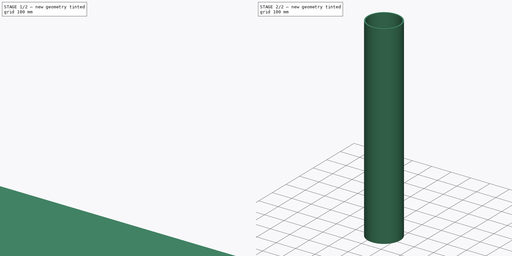
[diagram: build sequence overview — one tinted view per stage of 2, left to right]
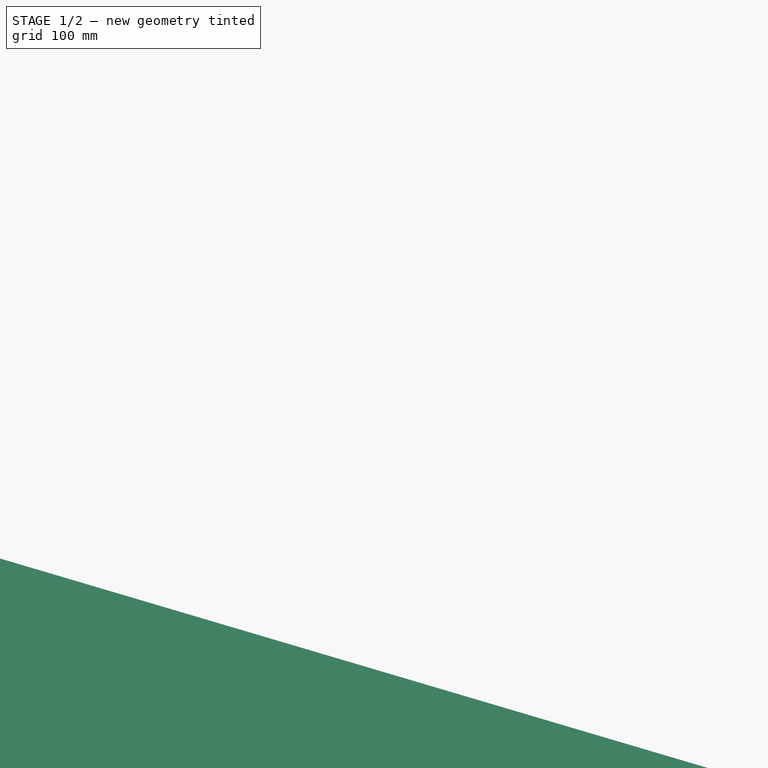
[diagram: stage 1 of 2 — iso view after this stage's code; geometry added in this stage tinted green]
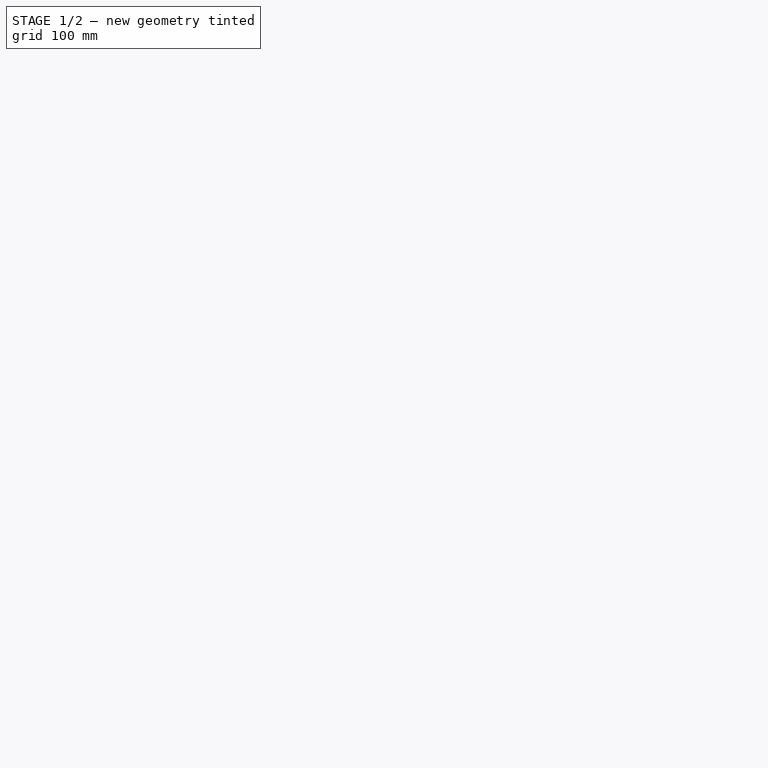
[diagram: stage 1 of 2 — front view after this stage's code; geometry added in this stage tinted green]
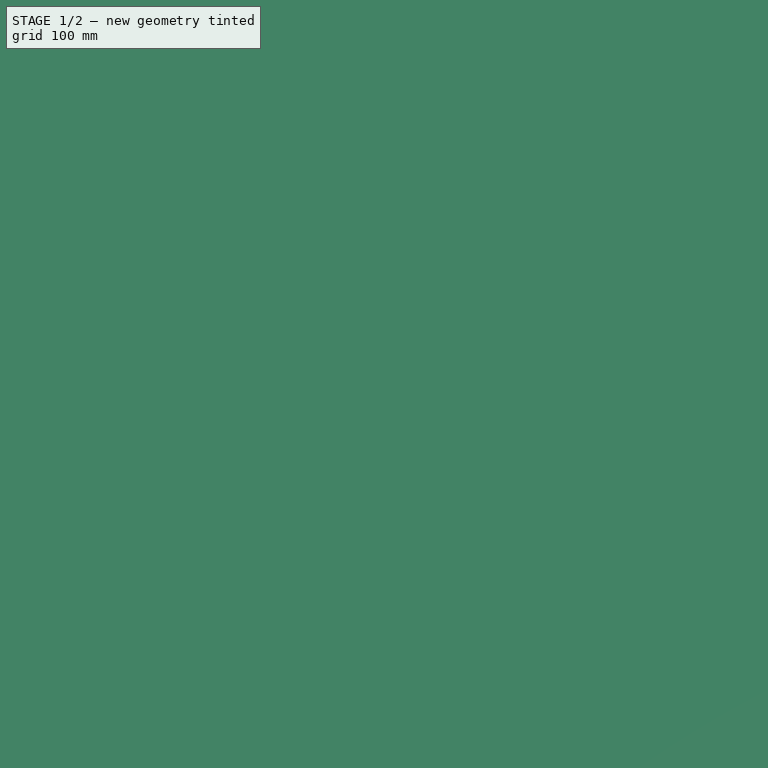
[diagram: stage 1 of 2 — top view after this stage's code; geometry added in this stage tinted green]
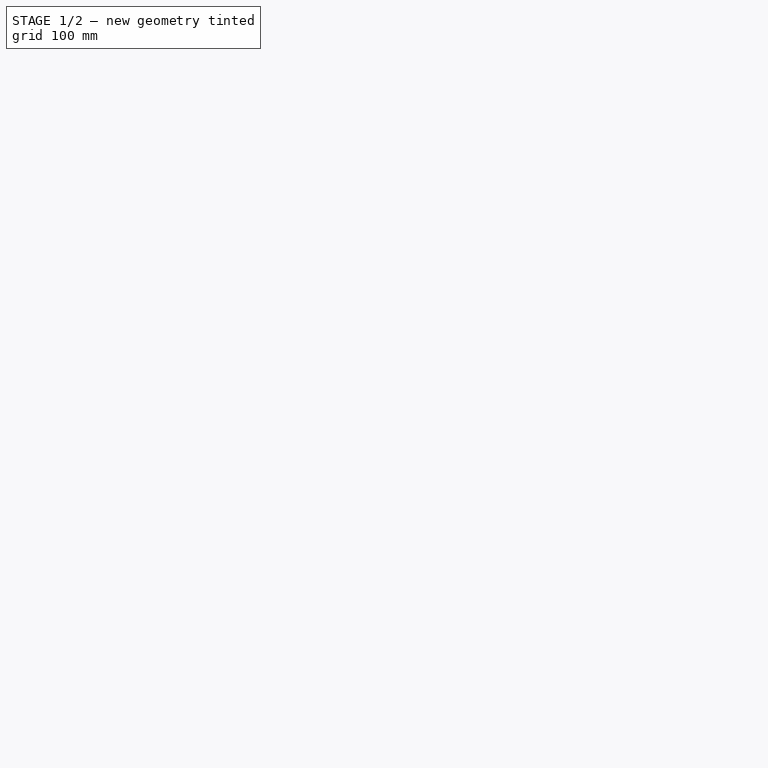
[diagram: stage 1 of 2 — right view after this stage's code; geometry added in this stage tinted green]
FCSTD DOCUMENT  (FreeCAD 0.20R29177 +426 (Git))
Label: NMS_Ruhrstr12_Silo_CAD
License: All rights reserved
LicenseURL: http://en.wikipedia.org/wiki/All_rights_reserved
objects: Sketcher::SketchObject×6, Part::FeaturePython×5, Part::Feature×4, Image::ImagePlane×3, Part::Extrusion×3, Part::Part2DObjectPython×2, Part::Revolution×1, Part::Cylinder×1, App::DocumentObjectGroup×1
note: 22 computed .brp shape members not serialized (recipe doc carries the construction recipe); baked Part::Feature solids carry a one-line shape summary decoded from their .brp

FEATURE [Image::ImagePlane] ImagePlane  label="Siloplan Bestand"
  Placement = pos=(2598,2000,7284) rot=(-1,0,0;4.71239rad)
  XSize = 20822.6
  YSize = 21481.1
  expr: XSize = 259.33 * 80.294mm
  expr: YSize = 267.53 * 80.294mm
FEATURE [Sketcher::SketchObject] Sketch
  FullyConstrained = false
  Placement = pos=(0,0,0) rot=(1,0,0;1.5708rad)
  expr: Constraints[49] = 2865 / 2
  sketch-geometry (19):
    g0: LineSegment StartX=1432.5 StartY=14210 StartZ=0 EndX=1432.5 EndY=12210 EndZ=0
    g1: LineSegment StartX=1432.5 StartY=10210 StartZ=0 EndX=1432.5 EndY=8210 EndZ=0
    g2: LineSegment StartX=1432.5 StartY=8210 StartZ=0 EndX=1432.5 EndY=6210 EndZ=0
    g3: LineSegment StartX=1432.5 StartY=6210 StartZ=0 EndX=1432.5 EndY=4210 EndZ=0
    g4: LineSegment StartX=0 StartY=-300 StartZ=0 EndX=-5700 EndY=-300 EndZ=0
    g5: LineSegment StartX=1432.5 StartY=16210 StartZ=0 EndX=1432.5 EndY=16090 EndZ=0
    g6: LineSegment StartX=1432.5 StartY=16090 StartZ=0 EndX=1432.5 EndY=14210 EndZ=0
    g7: LineSegment StartX=1432.5 StartY=12210 StartZ=0 EndX=1432.5 EndY=12090 EndZ=0
    g8: LineSegment StartX=1432.5 StartY=12090 StartZ=0 EndX=1432.5 EndY=10210 EndZ=0
    g9: LineSegment StartX=0 StartY=16210 StartZ=0 EndX=0 EndY=14210 EndZ=0
    g10: LineSegment StartX=0 StartY=14210 StartZ=0 EndX=0 EndY=12210 EndZ=0
    g11: LineSegment StartX=0 StartY=12210 StartZ=0 EndX=0 EndY=10210 EndZ=0
    g12: LineSegment StartX=0 StartY=10210 StartZ=0 EndX=0 EndY=8210 EndZ=0
    g13: LineSegment StartX=0 StartY=8210 StartZ=0 EndX=0 EndY=6210 EndZ=0
    g14: LineSegment StartX=0 StartY=6210 StartZ=0 EndX=0 EndY=4210 EndZ=0
    g15: LineSegment StartX=0 StartY=4210 StartZ=0 EndX=0 EndY=2510 EndZ=0
    g16: LineSegment StartX=1432.5 StartY=4210 StartZ=0 EndX=150 EndY=2510 EndZ=0
    g17: LineSegment StartX=150 StartY=2510 StartZ=0 EndX=0 EndY=2510 EndZ=0
    g18: LineSegment StartX=1432.5 StartY=16210 StartZ=0 EndX=377.475 EndY=16355.8 EndZ=0
  constraints (57):
    c: Coincident(g6,g0)
    c: Vertical(g0)
    c: Coincident(g0,g7)
    c: Coincident(g8,g1)
    c: Vertical(g1)
    c: Coincident(g1,g2)
    c: Vertical(g2)
    c: Coincident(g2,g3)
    c: Vertical(g3)
    c: PointOnObject(g4,g-2)
    c: Horizontal(g4)
    c: DistanceY(g4,g-1) = 300
    c: DistanceX(g4,g4) = 5700
    c: DistanceY(g4,g5) = 16510
    c: Coincident(g5,g6)
    c: Vertical(g5)
    c: Vertical(g6)
    c: DistanceY(g5,g5) = 120
    c: Coincident(g7,g8)
    c: Vertical(g7)
    c: Vertical(g8)
    c: Equal(g7,g5)
    c: PointOnObject(g9,g-2)
    c: Vertical(g9)
    c: Coincident(g9,g10)
    c: PointOnObject(g10,g-2)
    c: Coincident(g10,g11)
    c: Vertical(g11)
    c: Coincident(g11,g12)
    c: Vertical(g12)
    c: Coincident(g12,g13)
    c: Vertical(g13)
    c: Coincident(g13,g14)
    c: PointOnObject(g14,g-2)
    c: Coincident(g14,g15)
    c: PointOnObject(g15,g-2)
    c: Equal(g14,g13)
    c: Equal(g13,g12)
    c: Equal(g12,g11)
    c: Equal(g11,g10)
    c: Equal(g10,g9)
    c: DistanceY(g9,g9) = 2000
    c: Horizontal(g9,g5)
    c: Horizontal(g9,g0)
    c: Horizontal(g10,g0)
    c: Horizontal(g11,g1)
    c: Horizontal(g12,g1)
    c: Horizontal(g13,g2)
    c: Horizontal(g14,g3)
    c: DistanceX(g14,g3) = 1432.5
    c: Coincident(g3,g16)
    c: Coincident(g16,g17)
    c: Coincident(g17,g15)
    c: Horizontal(g17)
    c: DistanceY(g15,g15) = 1700
    c: DistanceX(g17,g17) = 150
    c: Coincident(g18,g5)
FEATURE [Part::Revolution] Revolve  label="Silo"
  Angle = 360
  Axis = (0,0,1)
  Base = (0,0,0)
  FaceMakerClass = Part::FaceMakerBullseye
  Solid = false
  Source = -> Sketch
  Symmetric = false
FEATURE [Part::Part2DObjectPython] Circle  # Draft 2D object (typed FeaturePython)
  Area = 6.44672e+06
  FirstAngle = 0
  LastAngle = 0
  MakeFace = true
  Placement = pos=(0,0,4210) rot=(0,0,1;0rad)
  Radius = 1432.5
FEATURE [Sketcher::SketchObject] Sketch001
  ExternalGeometry = -> [Circle]
  FullyConstrained = true
  MapMode = 5
  Placement = pos=(0,0,4210) rot=(0,0,1;0rad)
  Support = -> [Circle]
  sketch-geometry (6):
    g0: LineSegment StartX=0 StartY=0 StartZ=0 EndX=1012.93 EndY=1012.93 EndZ=0
    g1: LineSegment StartX=0 StartY=0 StartZ=0 EndX=1012.93 EndY=0 EndZ=0
    g2: LineSegment StartX=1012.93 StartY=1012.93 StartZ=0 EndX=1012.93 EndY=0 EndZ=0
    g3: LineSegment StartX=947.29 StartY=1074.57 StartZ=0 EndX=996.787 EndY=1124.07 EndZ=0
    g4: LineSegment StartX=996.787 StartY=1124.07 StartZ=0 EndX=1124.07 EndY=996.787 EndZ=0
    g5: LineSegment StartX=1124.07 StartY=996.787 StartZ=0 EndX=1074.57 EndY=947.29 EndZ=0
  constraints (17):
    c: Coincident(g0,g-1)
    c: Coincident(g1,g0)
    c: PointOnObject(g1,g-1)
    c: Coincident(g2,g0)
    c: Coincident(g2,g1)
    c: Vertical(g2)
    c: Equal(g1,g2)
    c: PointOnObject(g0,g-3)
    c: PointOnObject(g3,g-3)
    c: Coincident(g3,g4)
    c: Coincident(g4,g5)
    c: Symmetric(g5,g3,g0)
    c: Parallel(g5,g3)
    c: Parallel(g3,g0)
    c: Equal(g5,g3)
    c: Distance(g4) = 180
    c: Distance(g5) = 70
FEATURE [Part::Extrusion] Extrude
  Base = -> Sketch001
  Dir = (0,0,1)
  DirMode = 2
  FaceMakerClass = Part::FaceMakerBullseye
  LengthFwd = 2000
  LengthRev = 110
  Solid = false
  Symmetric = false
FEATURE [Part::FeaturePython] Array  label="U180"  # Draft array (typed FeaturePython)
  Angle = 360
  ArrayType = 1
  Axis = (0,0,1)
  Base = -> Extrude
  Center = (0,0,0)
  Fuse = false
  IntervalAxis = (0,0,0)
  IntervalX = (50,0,0)
  IntervalY = (0,50,0)
  IntervalZ = (0,0,50)
  NumberCircles = 3
  NumberPolar = 4
  NumberX = 2
  NumberY = 2
  NumberZ = 1
  RadialDistance = 50
  Symmetry = 1
  TangentialDistance = 25
FEATURE [Part::Cylinder] Cylinder  label="Silostütze"
  Angle = 360
  AttacherType = Attacher::AttachEngine3D
  FirstAngle = 0
  Height = 4100
  Placement = pos=(1035.68,-1035.68,2.728e-12) rot=(0,0,1;0rad)
  Radius = 110
  SecondAngle = 0
FEATURE [Part::FeaturePython] Facebinder  # WARN: FeaturePython — macro-defined, semantics opaque (R4)
  Area = 2.87173e+06
  Extrusion = 0
  Faces = -> [Cylinder]
  RemoveSplitter = false
  Sew = false
FEATURE [Part::FeaturePython] Array001  label="Stuetzen"  # Draft array (typed FeaturePython)
  Angle = 360
  ArrayType = 1
  Axis = (0,0,1)
  Base = -> Facebinder
  Center = (0,0,0)
  Fuse = false
  IntervalAxis = (0,0,0)
  IntervalX = (50,0,0)
  IntervalY = (0,50,0)
  IntervalZ = (0,0,50)
  NumberCircles = 3
  NumberPolar = 4
  NumberX = 2
  NumberY = 2
  NumberZ = 1
  RadialDistance = 50
  Symmetry = 1
  TangentialDistance = 25
FEATURE [Part::FeaturePython] BooleanFragments  label="Silo2"  # WARN: FeaturePython — macro-defined, semantics opaque (R4)
  Mode = 0
  Objects = -> [Array001,Array,Revolve]
  Tolerance = 0
FEATURE [Part::Feature] BooleanFragments001  label="Silo3"
  Placement = pos=(3500,0,0) rot=(0,0,1;0rad)
  shape: bbox 2865 x 2865 x 16360 mm, 39 faces, 0 solids (baked)
FEATURE [Part::Feature] BooleanFragments002  label="Silo1"
  Placement = pos=(-3500,0,0) rot=(0,0,1;0rad)
  shape: bbox 2865 x 2865 x 16360 mm, 39 faces, 0 solids (baked)
FEATURE [Part::Feature] BooleanFragments003  label="Silo4"
  Placement = pos=(7000,0,0) rot=(0,0,1;0rad)
  shape: bbox 2865 x 2865 x 16360 mm, 39 faces, 0 solids (baked)
FEATURE [Part::Feature] BooleanFragments004  label="Silo5"
  Placement = pos=(10500,0,0) rot=(0,0,1;0rad)
  shape: bbox 2865 x 2865 x 16360 mm, 39 faces, 0 solids (baked)
FEATURE [Sketcher::SketchObject] Sketch002
  FullyConstrained = true
  Placement = pos=(0,0,0) rot=(1,0,0;1.5708rad)
  sketch-geometry (4):
    g0: LineSegment StartX=-5500 StartY=0 StartZ=0 EndX=12500 EndY=0 EndZ=0
    g1: LineSegment StartX=12500 StartY=0 StartZ=0 EndX=12500 EndY=-1300 EndZ=0
    g2: LineSegment StartX=12500 StartY=-1300 StartZ=0 EndX=-5500 EndY=-1300 EndZ=0
    g3: LineSegment StartX=-5500 StartY=-1300 StartZ=0 EndX=-5500 EndY=0 EndZ=0
  constraints (12):
    c: Coincident(g0,g1)
    c: Coincident(g1,g2)
    c: Coincident(g2,g3)
    c: Coincident(g3,g0)
    c: Horizontal(g0)
    c: Horizontal(g2)
    c: Vertical(g1)
    c: Vertical(g3)
    c: PointOnObject(g-1,g0)
    c: DistanceY(g3,g3) = 1300
    c: DistanceX(g2,g2) = 18000
    c: DistanceX(g0,g-1) = 5500
FEATURE [Part::Extrusion] Extrude001  label="Fundament Silo"
  Base = -> Sketch002
  Dir = (0,-1,-3e-16)
  DirMode = 2
  FaceMakerClass = Part::FaceMakerBullseye
  LengthFwd = 3300
  LengthRev = 0
  Solid = true
  Symmetric = true
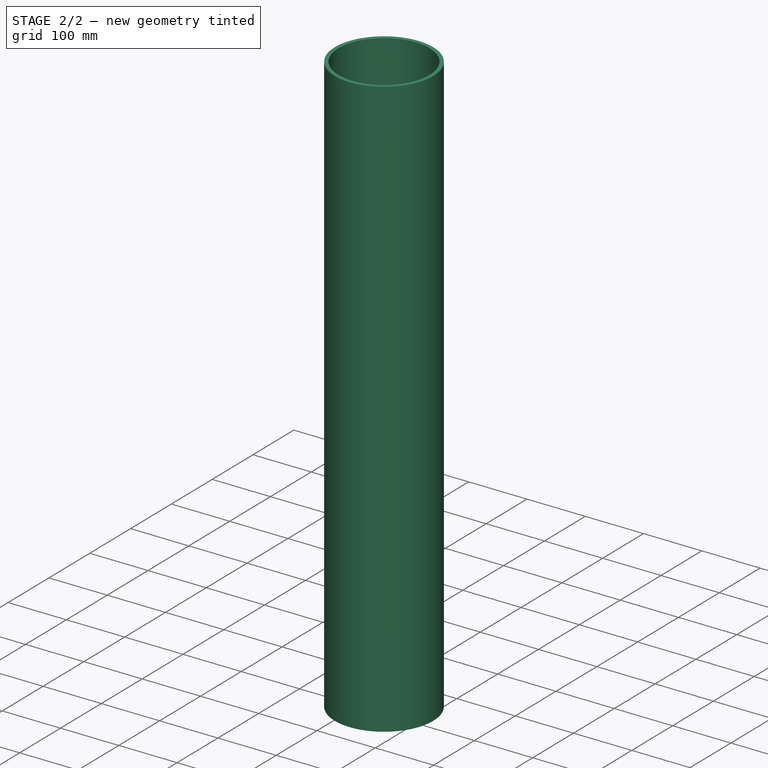
[diagram: stage 2 of 2 — iso view after this stage's code; geometry added in this stage tinted green]
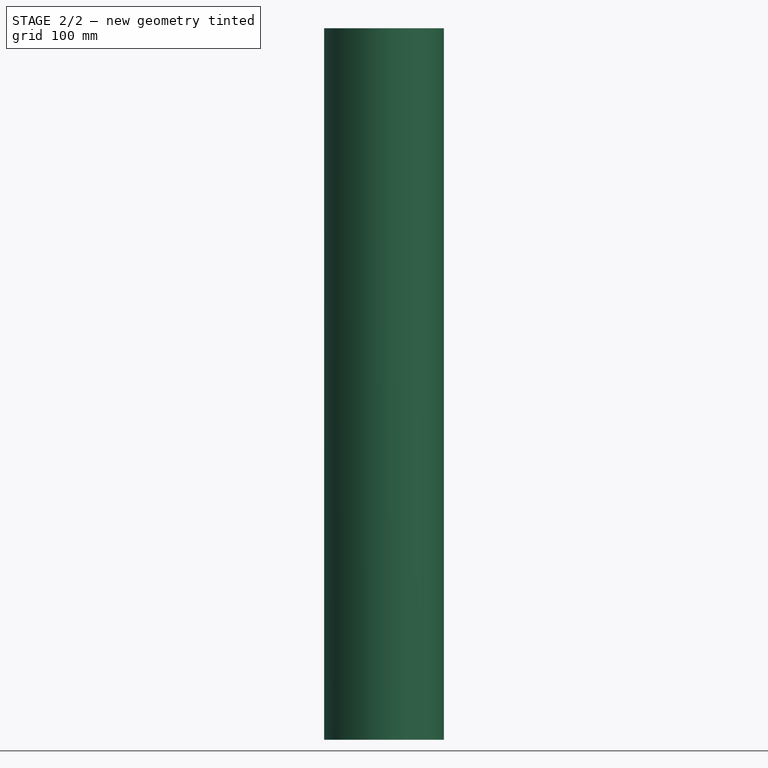
[diagram: stage 2 of 2 — front view after this stage's code; geometry added in this stage tinted green]
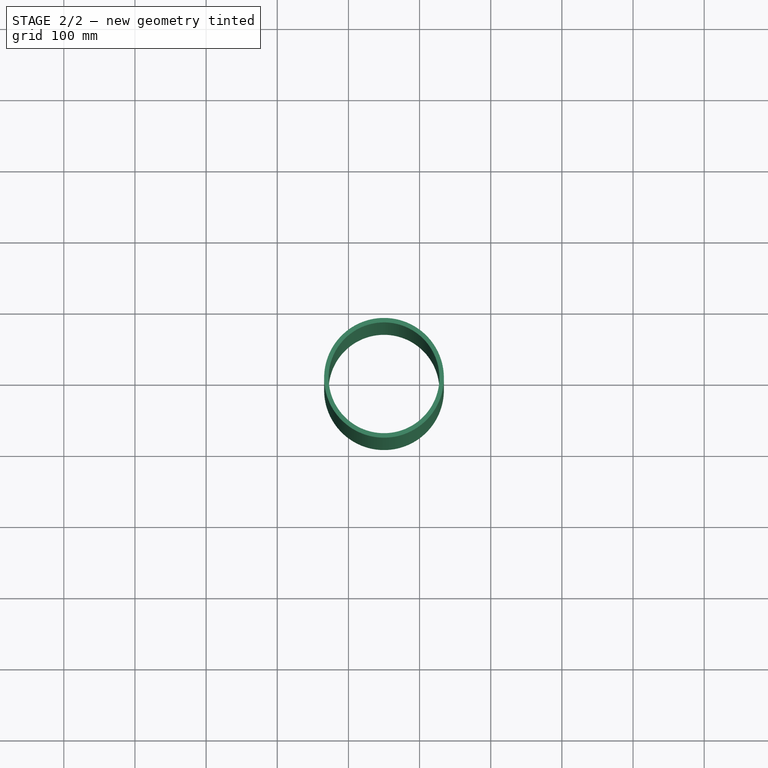
[diagram: stage 2 of 2 — top view after this stage's code; geometry added in this stage tinted green]
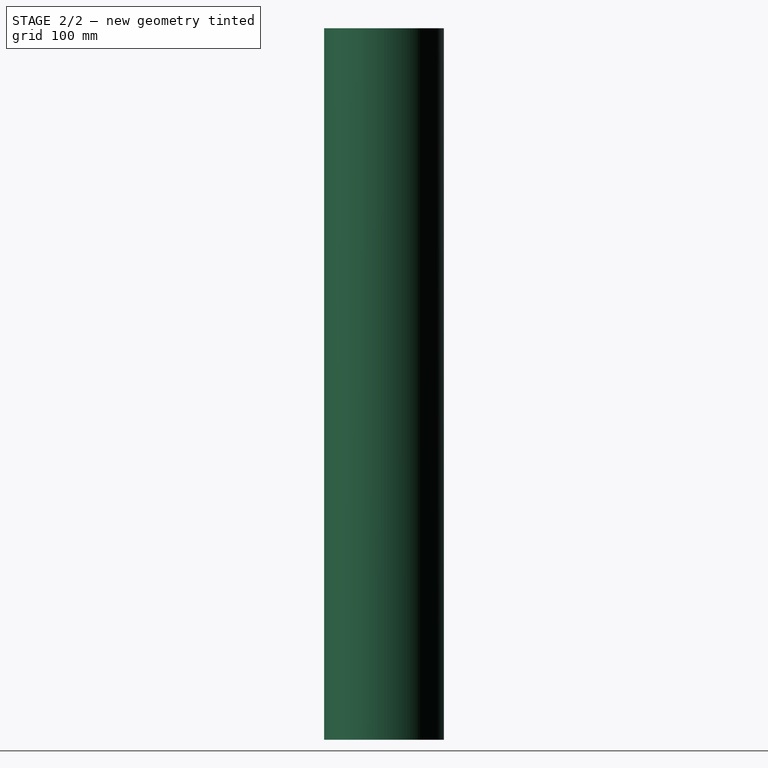
[diagram: stage 2 of 2 — right view after this stage's code; geometry added in this stage tinted green]
FEATURE [App::DocumentObjectGroup] Group  label="Referenzen"
  Group = -> [Circle,Cylinder]
FEATURE [Part::FeaturePython] BooleanFragments005  label="Silozellen"  # WARN: FeaturePython — macro-defined, semantics opaque (R4)
  Mode = 0
  Objects = -> [BooleanFragments,BooleanFragments001,BooleanFragments002,BooleanFragments003,BooleanFragments004,Extrude001]
  Tolerance = 0
FEATURE [Image::ImagePlane] ImagePlane002  label="GWP_Ansicht"
  Placement = pos=(3865,2000,10308) rot=(-1,0,0;4.71239rad)
  XSize = 26230.3
  YSize = 23829
  expr: XSize = 300.61 * 87.25700000000001mm
  expr: YSize = 273.09 * 87.25700000000001mm
FEATURE [Image::ImagePlane] ImagePlane003  label="Draufsicht_Mastlager"
  Placement = pos=(-1753,0,15500) rot=(0,0,1;1.5708rad)
  XSize = 3197.82
  YSize = 3628.35
  expr: XSize = 220.16 * 14.525mm
  expr: YSize = 249.8 * 14.525mm
FEATURE [Part::Part2DObjectPython] Rectangle  label="Ebene_Lager_oben"  # Draft 2D object (typed FeaturePython)
  Area = 1440000
  ChamferSize = 0
  Columns = 1
  FilletRadius = 0
  Height = 1200
  Length = 1200
  MakeFace = true
  Placement = pos=(-2425.12,-460.63,16000) rot=(0,0,1;0rad)
  Rows = 1
FEATURE [Sketcher::SketchObject] Sketch003  label="System_Mast"
  ExternalGeometry = -> [BooleanFragments005]
  FullyConstrained = true
  Placement = pos=(0,600,0) rot=(1,0,0;1.5708rad)
  sketch-geometry (17):
    g0: LineSegment StartX=-5500 StartY=-300 StartZ=0 EndX=-6500 EndY=-300 EndZ=0
    g1: LineSegment StartX=-1750 StartY=21420 StartZ=0 EndX=-1750 EndY=20920 EndZ=0
    g2: LineSegment StartX=-6500 StartY=20920 StartZ=0 EndX=-6500 EndY=-300 EndZ=0
    g3: LineSegment StartX=-1750 StartY=20920 StartZ=0 EndX=-6500 EndY=20920 EndZ=0
    g4: LineSegment StartX=-1750 StartY=20920 StartZ=0 EndX=-1750 EndY=19220 EndZ=0
    g5: LineSegment StartX=-1750 StartY=19220 StartZ=0 EndX=-1750 EndY=18320 EndZ=0
    g6: LineSegment StartX=-1750 StartY=18320 StartZ=0 EndX=-1750 EndY=16070 EndZ=0
    g7: LineSegment StartX=-1750 StartY=16070 StartZ=0 EndX=-1750 EndY=11770 EndZ=0
    g8: LineSegment StartX=-1750 StartY=11770 StartZ=0 EndX=-1750 EndY=11020 EndZ=0
    g9: LineSegment StartX=-1750 StartY=18020 StartZ=0 EndX=-1450 EndY=18020 EndZ=0
    g10: LineSegment StartX=-1450 StartY=18020 StartZ=0 EndX=-1450 EndY=16820 EndZ=0
    g11: LineSegment StartX=-1450 StartY=16820 StartZ=0 EndX=-1750 EndY=16820 EndZ=0
    g12: LineSegment StartX=-1750 StartY=16820 StartZ=0 EndX=-2050 EndY=16820 EndZ=0
    g13: LineSegment StartX=-2050 StartY=16820 StartZ=0 EndX=-2050 EndY=18020 EndZ=0
    g14: LineSegment StartX=-2050 StartY=18020 StartZ=0 EndX=-1750 EndY=18020 EndZ=0
    g15: LineSegment StartX=-2067.5 StartY=14210 StartZ=0 EndX=-1750 EndY=14210 EndZ=0
    g16: LineSegment StartX=-1750 StartY=14210 StartZ=0 EndX=-1432.5 EndY=14210 EndZ=0
  constraints (51):
    c: PointOnObject(g0,g-3)
    c: Horizontal(g0)
    c: DistanceX(g0,g0) = 1000
    c: DistanceY(g0,g-3) = 300
    c: Vertical(g1)
    c: Coincident(g2,g0)
    c: Vertical(g2)
    c: Coincident(g3,g1)
    c: Coincident(g3,g2)
    c: Horizontal(g3)
    c: DistanceY(g2,g2) = 21220
    c: DistanceY(g1,g1) = 500
    c: Coincident(g4,g1)
    c: Vertical(g4)
    c: DistanceY(g4,g4) = 1700
    c: Coincident(g5,g4)
    c: Vertical(g5)
    c: DistanceY(g5,g5) = 900
    c: Coincident(g6,g5)
    c: Vertical(g6)
    c: Coincident(g7,g6)
    c: Vertical(g7)
    c: Coincident(g8,g7)
    c: Vertical(g8)
    c: DistanceY(g8,g1) = 9900
    c: DistanceY(g6,g6) = 2250
    c: DistanceY(g7,g7) = 4300
    c: PointOnObject(g9,g6)
    c: Horizontal(g9)
    c: Coincident(g9,g10)
    c: Vertical(g10)
    c: Coincident(g10,g11)
    c: PointOnObject(g11,g6)
    c: Horizontal(g11)
    c: Coincident(g11,g12)
    c: Horizontal(g12)
    c: Coincident(g12,g13)
    c: Vertical(g13)
    c: Coincident(g13,g14)
    c: Coincident(g14,g9)
    c: Horizontal(g14)
    c: DistanceY(g9,g5) = 300
    c: DistanceY(g10,g10) = 1200
    c: DistanceX(g9,g9) = 300
    c: Equal(g9,g14)
    c: Coincident(g15,g-5)
    c: PointOnObject(g15,g7)
    c: Horizontal(g15)
    c: Coincident(g16,g15)
    c: Coincident(g16,g-4)
    c: Equal(g16,g15)
FEATURE [Sketcher::SketchObject] Sketch004
  ExternalGeometry = -> [Sketch003,BooleanFragments005]
  FullyConstrained = false
  MapMode = 5
  Placement = pos=(-2425.12,-460.63,16000) rot=(0,0,1;0rad)
  Support = -> [Rectangle]
  sketch-geometry (7):
    g0: Circle CenterX=675.12 CenterY=1053.44 CenterZ=0 NormalX=0 NormalY=0 NormalZ=1 AngleXU=0 Radius=84.15
    g1: Circle CenterX=675.12 CenterY=1053.44 CenterZ=0 NormalX=0 NormalY=0 NormalZ=1 AngleXU=0 Radius=77.85
    g2: LineSegment StartX=752.97 StartY=1053.44 StartZ=0 EndX=759.27 EndY=1053.44 EndZ=0
    g3: LineSegment StartX=-1074.88 StartY=460.63 StartZ=0 EndX=281.888 EndY=920.234 EndZ=0
    g4: LineSegment StartX=281.888 StartY=920.234 StartZ=0 EndX=675.12 EndY=1053.44 EndZ=0
    g5: LineSegment StartX=2425.12 StartY=460.63 StartZ=0 EndX=1068.35 EndY=920.234 EndZ=0
    g6: LineSegment StartX=1068.35 StartY=920.234 StartZ=0 EndX=675.12 EndY=1053.44 EndZ=0
  constraints (18):
    c: Diameter(g0) = 168.3
    c: PointOnObject(g2,g1)
    c: PointOnObject(g2,g0)
    c: Horizontal(g2,g0)
    c: Horizontal(g2)
    c: DistanceX(g2,g2) = 6.3
    c: Coincident(g0,g1)
    c: Coincident(g3,g-4)
    c: PointOnObject(g3,g-4)
    c: Coincident(g4,g3)
    c: Coincident(g4,g0)
    c: Coincident(g5,g-5)
    c: PointOnObject(g5,g-5)
    c: Coincident(g6,g5)
    c: Coincident(g6,g0)
    c: Parallel(g3,g4)
    c: Parallel(g6,g5)
    c: Equal(g4,g6)
FEATURE [Part::Extrusion] Extrude002  label="R168"
  Base = -> Sketch004
  Dir = (0,0,1)
  DirMode = 0
  FaceMakerClass = Part::FaceMakerBullseye
  LengthFwd = 1000
  LengthRev = 0
  Solid = true
  Symmetric = true
FEATURE [Sketcher::SketchObject] Sketch005
  ExternalGeometry = -> [Extrude002,BooleanFragments005]
  FullyConstrained = false
  MapMode = 5
  Placement = pos=(-2425.12,-460.63,16000) rot=(0,0,1;0rad)
  Support = -> [Rectangle]
  sketch-geometry (8):
    g0: LineSegment StartX=-1074.88 StartY=460.63 StartZ=0 EndX=284.225 EndY=913.278 EndZ=0
    g1: LineSegment StartX=2425.12 StartY=460.63 StartZ=0 EndX=1066.01 EndY=913.278 EndZ=0
    g2: LineSegment StartX=284.225 StartY=913.278 StartZ=0 EndX=673.336 EndY=1049.49 EndZ=0
    g3: LineSegment StartX=1066.01 StartY=913.278 StartZ=0 EndX=788.326 EndY=1005.76 EndZ=0
    g4: LineSegment StartX=271.055 StartY=951.047 StartZ=0 EndX=660.121 EndY=1087.24 EndZ=0
    g5: LineSegment StartX=271.055 StartY=951.047 StartZ=0 EndX=297.486 EndY=875.54 EndZ=0
    g6: LineSegment StartX=297.486 StartY=875.54 StartZ=0 EndX=686.552 EndY=1011.73 EndZ=0
    g7: LineSegment StartX=686.552 StartY=1011.73 StartZ=0 EndX=660.121 EndY=1087.24 EndZ=0
  constraints (17):
    c: Coincident(g0,g-4)
    c: Coincident(g1,g-5)
    c: PointOnObject(g1,g-5)
    c: Horizontal(g0,g1)
    c: Coincident(g2,g0)
    c: Coincident(g3,g1)
    c: Parallel(g3,g1)
    c: Coincident(g5,g4)
    c: Coincident(g6,g5)
    c: Coincident(g7,g6)
    c: Coincident(g7,g4)
    c: PointOnObject(g2,g7)
    c: Symmetric(g6,g4,g2)
    c: Symmetric(g5,g4,g2)
    c: Distance(g4,g6) = 80
    c: PointOnObject(g0,g-4)
    c: Equal(g5,g7)
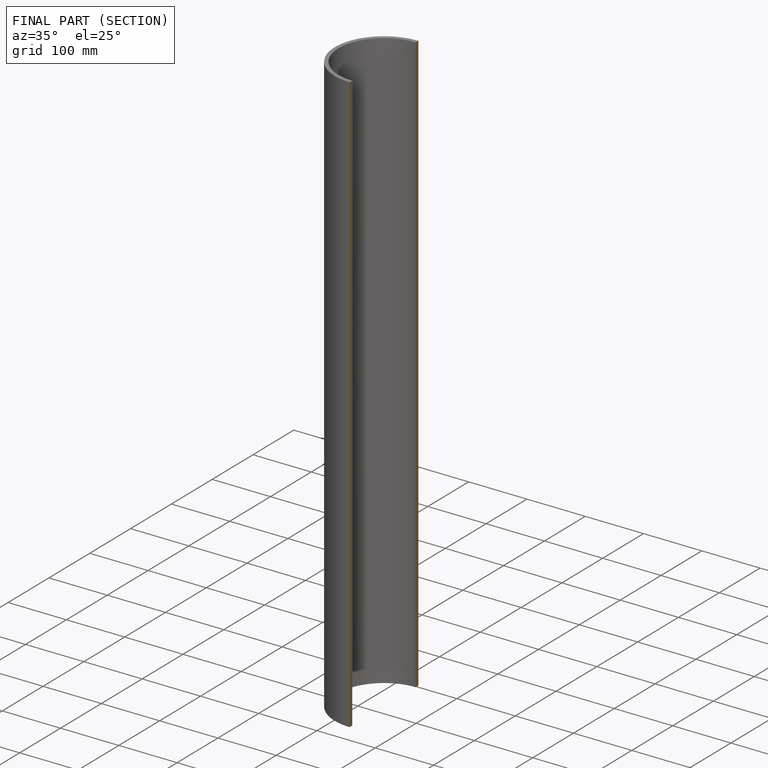
[diagram: finished part — half-section view (interior)]
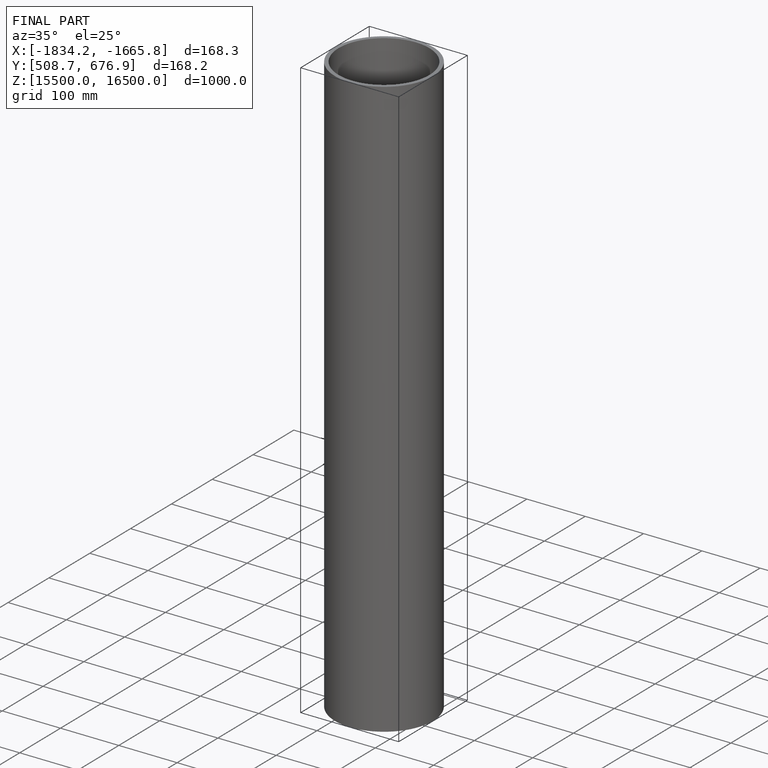
[diagram: finished part — iso view with bounding-box wireframe]
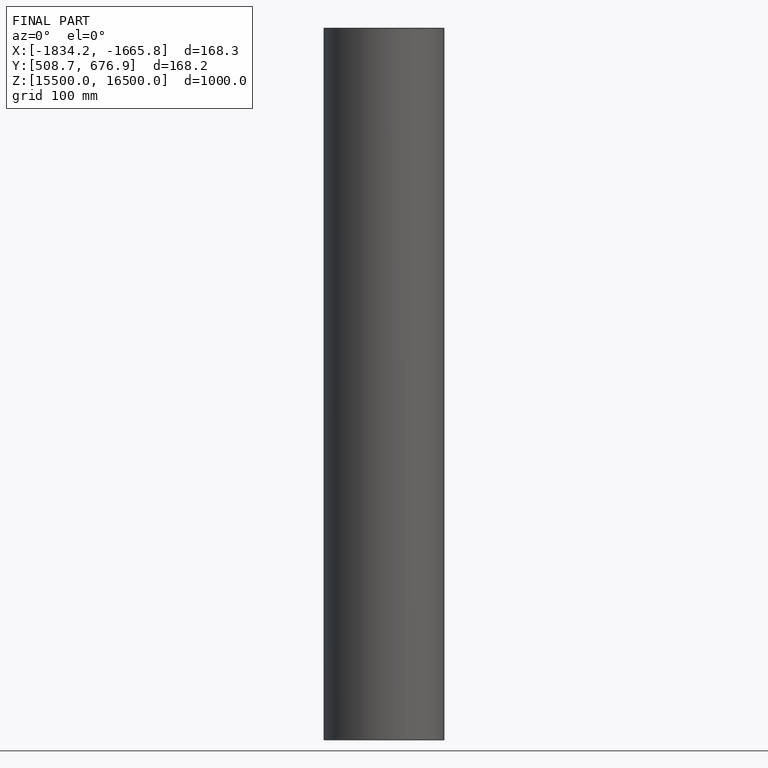
[diagram: finished part — front view with bounding-box wireframe]
